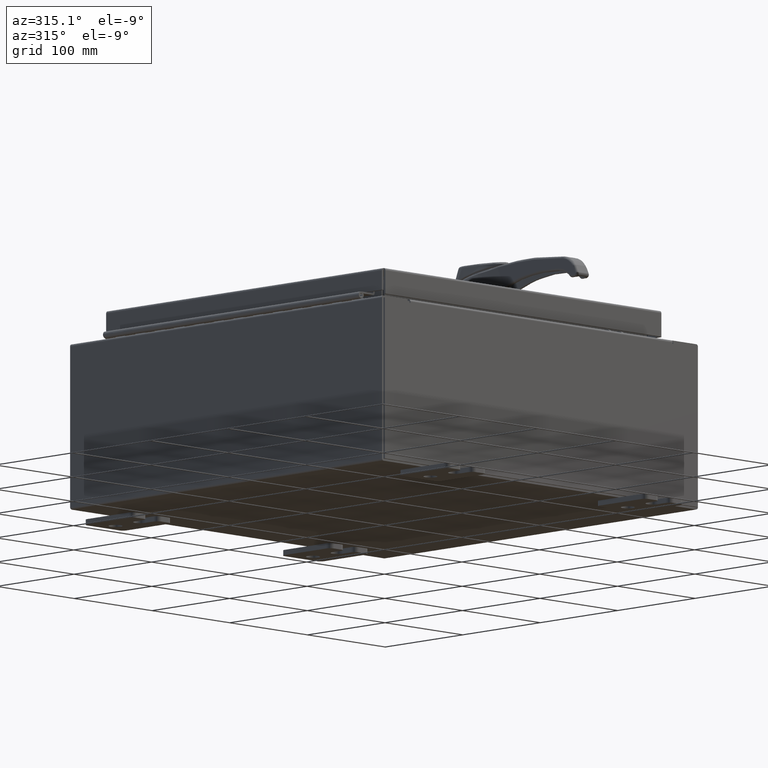
[diagram: clean part render]
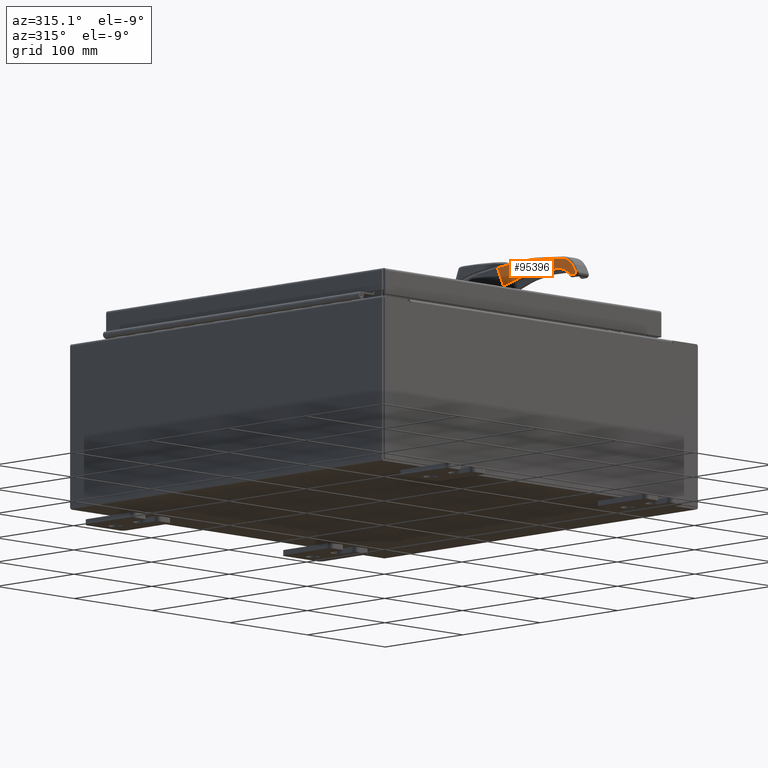
[diagram: same view with one face highlighted and labeled with its STEP entity id]
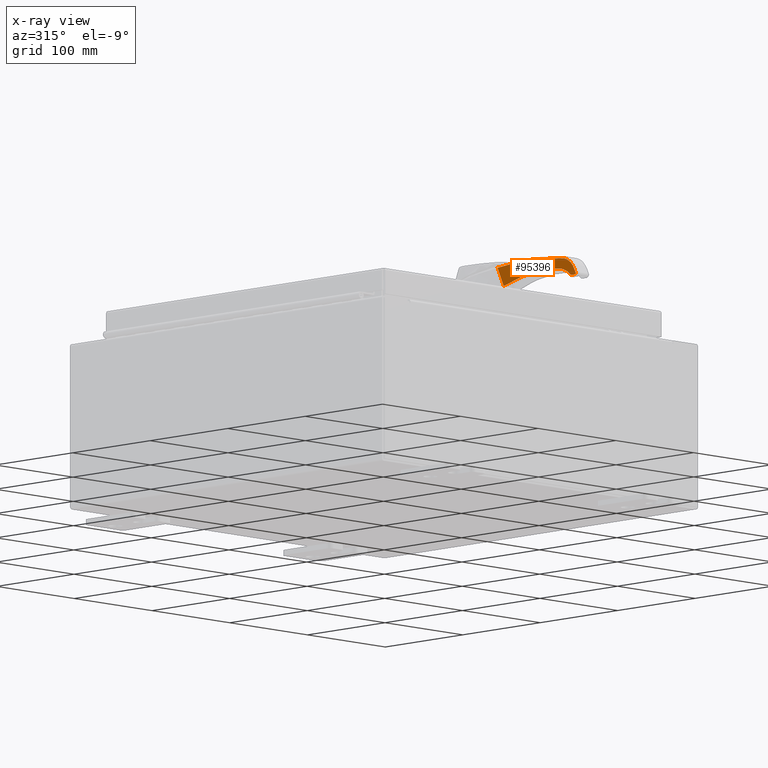
[diagram: x-ray of the same camera — body ghosted, the highlighted face saturated]
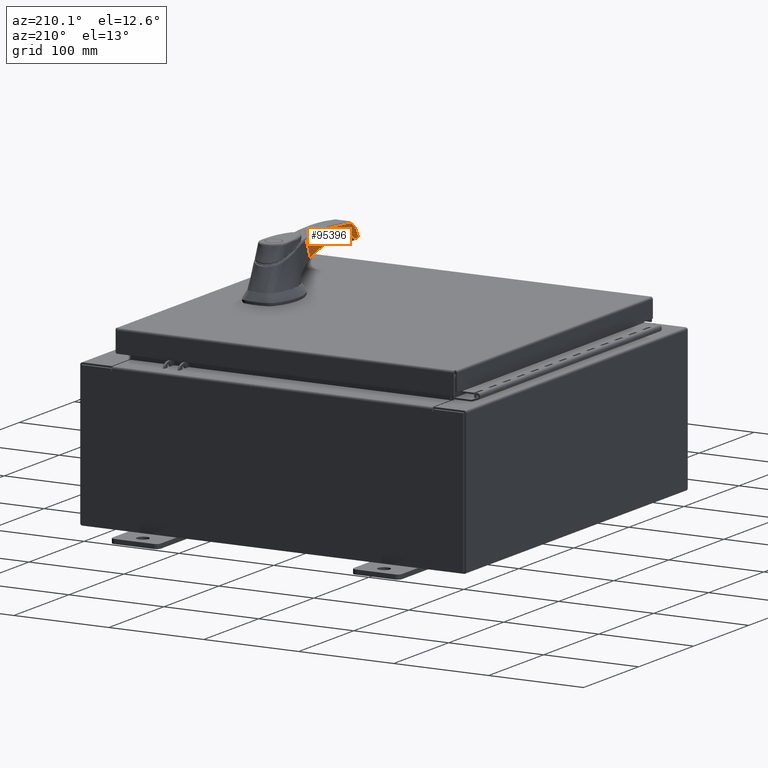
[diagram: same view with one face highlighted and labeled with its STEP entity id]
A machine part, auxiliary view. The second image highlights one B-rep face of the part: STEP entity #95396.
The next image is the same camera in x-ray: the body ghosted, the highlighted face saturated — about 0% of this face is hidden behind the body in this view.
A second angle (auxiliary view) of the same face is appended — the face is thin or edge-on in the first view.
In plain terms, the highlighted planar face has unit normal (-0.9997, -0.0262, 0).
Its self-contained STEP definition (entity closure, byte-faithful):
#308 = CARTESIAN_POINT ( 'NONE',  ( 5.027252122979119200, -0.3276492512891432400, 1.672613598478886100 ) ) ;
#590 = CARTESIAN_POINT ( 'NONE',  ( 4.226459910475989900, -0.3486187333589606000, 1.813212604159503600 ) ) ;
#676 = CARTESIAN_POINT ( 'NONE',  ( 5.412766542191642200, -0.3175542009438561700, 1.106221448057419100 ) ) ;
#954 = CARTESIAN_POINT ( 'NONE',  ( 1.830296283125000900, -0.4113644861716954600, 1.790684879674263200 ) ) ;
#1873 = EDGE_CURVE ( 'NONE', #84992, #93906, #76020, .T. ) ;
#3040 = CARTESIAN_POINT ( 'NONE',  ( 1.865198265657925300, -0.4104505455944753600, 1.054892245080341500 ) ) ;
#4730 = CARTESIAN_POINT ( 'NONE',  ( 2.136043681780679400, -0.4033582087705169200, 1.147100694644791900 ) ) ;
#4841 = VECTOR ( 'NONE', #72671, 39.37007874015748100 ) ;
#4992 = CARTESIAN_POINT ( 'NONE',  ( 1.643949245575242000, -0.4162441550816226000, 1.582017429974382800 ) ) ;
#5102 = CARTESIAN_POINT ( 'NONE',  ( 3.860877118394471500, -0.3581918556794490000, 1.427219183638859200 ) ) ;
#6200 = CARTESIAN_POINT ( 'NONE',  ( 4.796223764405048100, -0.3336989417670204700, 1.746371229950534700 ) ) ;
#6333 = VERTEX_POINT ( 'NONE', #3040 ) ;
#6376 = CARTESIAN_POINT ( 'NONE',  ( 0.01201875559651581700, -0.4589777588985590700, 1.102362204724396200 ) ) ;
#7168 = EDGE_LOOP ( 'NONE', ( #96371, #12815, #98367, #17591, #25008, #20308, #19226, #48738, #52543 ) ) ;
#7201 = CARTESIAN_POINT ( 'NONE',  ( 4.726758739140723100, -0.3355179474703931000, 1.378636206842420300 ) ) ;
#7568 = CARTESIAN_POINT ( 'NONE',  ( 5.131864835780120000, -0.3249098709965970700, 1.155835109199118600 ) ) ;
#7907 = CARTESIAN_POINT ( 'NONE',  ( 5.395139227144961000, -0.3180157884331437600, 1.248437359127173800 ) ) ;
#7985 = VERTEX_POINT ( 'NONE', #22847 ) ;
#8622 = CARTESIAN_POINT ( 'NONE',  ( 4.965051659934795600, -0.3292780277359886300, 1.700730400688387400 ) ) ;
#8911 = CARTESIAN_POINT ( 'NONE',  ( 4.058275180073613000, -0.3530228055184109800, 1.827172151638980300 ) ) ;
#8985 = CARTESIAN_POINT ( 'NONE',  ( 5.424500800839977500, -0.3172469285672184800, 1.113942589046286200 ) ) ;
#10750 = CARTESIAN_POINT ( 'NONE',  ( 4.575459058248952700, -0.3394798690476670300, 1.404708311847414800 ) ) ;
#12815 = ORIENTED_EDGE ( 'NONE', *, *, #1873, .T. ) ;
#12817 = VERTEX_POINT ( 'NONE', #56847 ) ;
#12958 = CARTESIAN_POINT ( 'NONE',  ( 1.579369982001993300, -0.4179352226125470600, 1.719194243321980900 ) ) ;
#13066 = CARTESIAN_POINT ( 'NONE',  ( 2.425409967045300400, -0.3957808859198125900, 1.227263598866169500 ) ) ;
#13317 = CARTESIAN_POINT ( 'NONE',  ( 1.677914844090294700, -0.4153547345828571000, 1.507963518407065700 ) ) ;
#13417 = CARTESIAN_POINT ( 'NONE',  ( 4.118667457582276400, -0.3514413780761848100, 1.432448994375067600 ) ) ;
#14881 = DIRECTION ( 'NONE',  ( 0.9996573249755573700, 0.02617694830786631100, 0.0000000000000000000 ) ) ;
#15522 = CARTESIAN_POINT ( 'NONE',  ( 4.736852304631136200, -0.3352536381561077600, 1.375956415012458600 ) ) ;
#16202 = CARTESIAN_POINT ( 'NONE',  ( 5.350275075045015400, -0.3191905976013007500, 1.336461834158056300 ) ) ;
#16578 = CARTESIAN_POINT ( 'NONE',  ( 5.262234407094996200, -0.3214960236271381400, 1.473345805858052000 ) ) ;
#16927 = CARTESIAN_POINT ( 'NONE',  ( 4.949866840647726600, -0.3296756562228820300, 1.706683484577455200 ) ) ;
#17203 = CARTESIAN_POINT ( 'NONE',  ( 3.720888702291673200, -0.3618575813641107800, 1.851515652433124700 ) ) ;
#17284 = CARTESIAN_POINT ( 'NONE',  ( 5.432636934853127800, -0.3170338764000736900, 1.127150124212980900 ) ) ;
#17591 = ORIENTED_EDGE ( 'NONE', *, *, #38612, .T. ) ;
#19226 = ORIENTED_EDGE ( 'NONE', *, *, #86111, .T. ) ;
#20093 = EDGE_CURVE ( 'NONE', #34599, #31396, #36980, .T. ) ;
#20197 = CARTESIAN_POINT ( 'NONE',  ( 1.562662322280721000, -0.4183727280796126800, 1.754100271247677400 ) ) ;
#20308 = ORIENTED_EDGE ( 'NONE', *, *, #20093, .F. ) ;
#21277 = CARTESIAN_POINT ( 'NONE',  ( 1.602075017722321700, -0.4173406703279493000, 1.671475281182585900 ) ) ;
#21387 = CARTESIAN_POINT ( 'NONE',  ( 2.494816690941148000, -0.3939634068915022800, 1.244643828527438200 ) ) ;
#21656 = CARTESIAN_POINT ( 'NONE',  ( 1.711304161550123700, -0.4144804045346055500, 1.432741268597854900 ) ) ;
#21763 = CARTESIAN_POINT ( 'NONE',  ( 4.575459058248952700, -0.3394798690476670300, 1.404708311847414800 ) ) ;
#22261 = B_SPLINE_CURVE_WITH_KNOTS ( 'NONE', 3,
 ( #89745, #106023, #48577, #106372, #56905, #7201, #65228, #15522, #73532, #23874, #81811, #32246, #90118, #40569, #98419, #48946, #106721, #57250, #7568, #65569 ),
 .UNSPECIFIED., .F., .F.,
 ( 4, 1, 1, 1, 2, 2, 2, 1, 1, 1, 2, 2, 4 ),
 ( 0.0000000000000000000, 0.1249999999999930100, 0.1874999999999894000, 0.2187499999999874500, 0.2343749999999866500, 0.2499999999999858200, 0.4999999999999952300, 0.6249999999999988900, 0.6875000000000023300, 0.7187500000000042200, 0.7343750000000051100, 0.7500000000000060000, 1.000000000000000000 ),
 .UNSPECIFIED. ) ;
#22847 = CARTESIAN_POINT ( 'NONE',  ( 5.432269163649482200, -0.3170435068279676700, 1.156470923341585700 ) ) ;
#23874 = CARTESIAN_POINT ( 'NONE',  ( 4.848377189913946100, -0.3323332562570805400, 1.339782375009737700 ) ) ;
#24952 = CARTESIAN_POINT ( 'NONE',  ( 5.218945708604727500, -0.3226295780906361400, 1.524008939040908600 ) ) ;
#25008 = ORIENTED_EDGE ( 'NONE', *, *, #87076, .T. ) ;
#25299 = CARTESIAN_POINT ( 'NONE',  ( 4.895934355496986100, -0.3310879280490703300, 1.726751879461949400 ) ) ;
#25585 = CARTESIAN_POINT ( 'NONE',  ( 3.044340279585847400, -0.3795736252988379200, 1.862495029003548200 ) ) ;
#25670 = CARTESIAN_POINT ( 'NONE',  ( 5.434704668621652200, -0.3169797308857851800, 1.135807073948646100 ) ) ;
#26181 = CARTESIAN_POINT ( 'NONE',  ( 5.198911570732901700, -0.3231541904536540100, 1.102362204724396200 ) ) ;
#29672 = CARTESIAN_POINT ( 'NONE',  ( 1.634592319846323000, -0.4164891748048886200, 1.602177403728586700 ) ) ;
#29778 = CARTESIAN_POINT ( 'NONE',  ( 2.746605878384671900, -0.3873700749771385500, 1.305412663320849400 ) ) ;
#30030 = CARTESIAN_POINT ( 'NONE',  ( 1.719031078691577500, -0.4142780680883678100, 1.415067387106177900 ) ) ;
#30228 = CARTESIAN_POINT ( 'NONE',  ( 5.198911570732901700, -0.3231541904536540100, 1.102362204724396200 ) ) ;
#31396 = VERTEX_POINT ( 'NONE', #71166 ) ;
#32246 = CARTESIAN_POINT ( 'NONE',  ( 4.962652920588130500, -0.3293408409363854400, 1.281904483586329800 ) ) ;
#33309 = CARTESIAN_POINT ( 'NONE',  ( 5.208016648390412200, -0.3229157656042330200, 1.535582108366977000 ) ) ;
#33680 = CARTESIAN_POINT ( 'NONE',  ( 4.796223764405048100, -0.3336989417670204700, 1.746371229950534700 ) ) ;
#33686 = CARTESIAN_POINT ( 'NONE',  ( 5.403284725669279500, -0.3178024910476440200, 1.102871452685623100 ) ) ;
#33951 = CARTESIAN_POINT ( 'NONE',  ( 2.604808650227163900, -0.3910831660723982400, 1.849795997052754200 ) ) ;
#34034 = CARTESIAN_POINT ( 'NONE',  ( 5.434952900611659900, -0.3169732307023638800, 1.137955061585721900 ) ) ;
#34539 = CARTESIAN_POINT ( 'NONE',  ( 5.183227423342853700, -0.3235648943070889600, 1.105621196238420800 ) ) ;
#34599 = VERTEX_POINT ( 'NONE', #30228 ) ;
#36980 = B_SPLINE_CURVE_WITH_KNOTS ( 'NONE', 3,
 ( #26181, #67503, #75800, #34539, #92404, #42885, #100736 ),
 .UNSPECIFIED., .F., .F.,
 ( 4, 3, 4 ),
 ( 0.0000000000000000000, 0.5000000000000001100, 1.000000000000000000 ),
 .UNSPECIFIED. ) ;
#37998 = CARTESIAN_POINT ( 'NONE',  ( 1.641755148450550400, -0.4163016095368447500, 1.586756100386060900 ) ) ;
#38101 = CARTESIAN_POINT ( 'NONE',  ( 3.315619737121575200, -0.3724699227004774100, 1.391408703630372600 ) ) ;
#38354 = CARTESIAN_POINT ( 'NONE',  ( 1.721313358472558600, -0.4142183044890242500, 1.409828426558975600 ) ) ;
#38612 = EDGE_CURVE ( 'NONE', #6333, #78961, #68546, .T. ) ;
#40569 = CARTESIAN_POINT ( 'NONE',  ( 5.025008320771610700, -0.3277080073177657800, 1.241009566716809700 ) ) ;
#41646 = CARTESIAN_POINT ( 'NONE',  ( 5.167038257574067700, -0.3239888225321811400, 1.577522815041105800 ) ) ;
#41998 = CARTESIAN_POINT ( 'NONE',  ( 5.410740487529742500, -0.3176072550523275100, 1.105306983267832200 ) ) ;
#42272 = CARTESIAN_POINT ( 'NONE',  ( 2.435896487390821100, -0.3955062867205113000, 1.840399209067762600 ) ) ;
#42353 = CARTESIAN_POINT ( 'NONE',  ( 5.435478110066088500, -0.3169594776087827400, 1.144906467033223600 ) ) ;
#42683 = EDGE_CURVE ( 'NONE', #63917, #7985, #97278, .T. ) ;
#42885 = CARTESIAN_POINT ( 'NONE',  ( 5.173810360600048100, -0.3238114887734843100, 1.110928919130462300 ) ) ;
#44942 = EDGE_CURVE ( 'NONE', #12817, #84992, #68776, .T. ) ;
#45818 = AXIS2_PLACEMENT_3D ( 'NONE', #105724, #64587, #14881 ) ;
#46371 = CARTESIAN_POINT ( 'NONE',  ( 1.643485449543684800, -0.4162563000081288500, 1.583019722426740200 ) ) ;
#46479 = CARTESIAN_POINT ( 'NONE',  ( 3.688300484388262700, -0.3627109338822086500, 1.421075829406431800 ) ) ;
#46735 = CARTESIAN_POINT ( 'NONE',  ( 1.820067232618682000, -0.4116323432859810800, 1.174716615665965400 ) ) ;
#48577 = CARTESIAN_POINT ( 'NONE',  ( 4.644924989263725700, -0.3376608396263841600, 1.396706217672467800 ) ) ;
#48738 = ORIENTED_EDGE ( 'NONE', *, *, #42683, .T. ) ;
#48946 = CARTESIAN_POINT ( 'NONE',  ( 5.039462476693138600, -0.3273295119244560800, 1.230622647016470700 ) ) ;
#49047 = LINE ( 'NONE', #6376, #4841 ) ;
#49717 = EDGE_CURVE ( 'NONE', #7985, #12817, #86622, .T. ) ;
#49992 = CARTESIAN_POINT ( 'NONE',  ( 5.061091700976718700, -0.3267631307537640100, 1.653180530169524400 ) ) ;
#50281 = CARTESIAN_POINT ( 'NONE',  ( 4.796223764405048100, -0.3336989417670204700, 1.746371229950534700 ) ) ;
#50369 = CARTESIAN_POINT ( 'NONE',  ( 5.412470275555306500, -0.3175619589587588300, 1.106081584536708500 ) ) ;
#50635 = CARTESIAN_POINT ( 'NONE',  ( 2.098858991442421400, -0.4043319241552888500, 1.817993473940958400 ) ) ;
#50716 = CARTESIAN_POINT ( 'NONE',  ( 5.432269163649482200, -0.3170435068279676700, 1.156470923341585700 ) ) ;
#51581 = EDGE_CURVE ( 'NONE', #93906, #6333, #54832, .T. ) ;
#52543 = ORIENTED_EDGE ( 'NONE', *, *, #49717, .T. ) ;
#54673 = CARTESIAN_POINT ( 'NONE',  ( 1.643893878337060500, -0.4162456049237791000, 1.582137094454558300 ) ) ;
#54777 = CARTESIAN_POINT ( 'NONE',  ( 3.832095397972286000, -0.3589455315530504800, 1.426446183039729000 ) ) ;
#54832 = B_SPLINE_CURVE_WITH_KNOTS ( 'NONE', 3,
 ( #70965, #12958, #21277, #79257, #29672, #87543, #37998, #95833, #46371, #104190, #54673, #4992, #62996, #13317, #71317, #21656, #79616, #30030, #87921, #38354, #96199, #46735, #104560 ),
 .UNSPECIFIED., .F., .F.,
 ( 4, 1, 1, 1, 1, 1, 1, 1, 2, 2, 1, 1, 1, 1, 2, 2, 4 ),
 ( 0.0000000000000000000, 0.1249999999999781300, 0.1874999999999679100, 0.2187499999999625600, 0.2343749999999601700, 0.2421874999999595900, 0.2460937499999595900, 0.2480468749999592800, 0.2490234374999591400, 0.2499999999999589800, 0.3749999999999637000, 0.4374999999999663000, 0.4687499999999675800, 0.4843749999999682500, 0.4921874999999689100, 0.4999999999999694700, 1.000000000000000000 ),
 .UNSPECIFIED. ) ;
#56847 = CARTESIAN_POINT ( 'NONE',  ( 5.297676707349642900, -0.3205679343324388000, 1.420544348434232400 ) ) ;
#56905 = CARTESIAN_POINT ( 'NONE',  ( 4.716594132266138200, -0.3357841170687924100, 1.381253626412967800 ) ) ;
#57250 = CARTESIAN_POINT ( 'NONE',  ( 5.090218071540584300, -0.3260004298985836900, 1.193013598777301400 ) ) ;
#58335 = CARTESIAN_POINT ( 'NONE',  ( 4.986069071573239400, -0.3287276674432371700, 1.691919187316828900 ) ) ;
#58599 = CARTESIAN_POINT ( 'NONE',  ( 4.125567585503073800, -0.3512606918676333700, 1.821762134555519500 ) ) ;
#58677 = CARTESIAN_POINT ( 'NONE',  ( 5.419404971012599300, -0.3173803675674077800, 1.109486800366131300 ) ) ;
#58946 = CARTESIAN_POINT ( 'NONE',  ( 1.562662322280721000, -0.4183727280796126800, 1.754100271247677400 ) ) ;
#62374 = CARTESIAN_POINT ( 'NONE',  ( 1.865198265657925300, -0.4104505455944753600, 1.054892245080341500 ) ) ;
#62732 = CARTESIAN_POINT ( 'NONE',  ( 2.328568600768278400, -0.3983167663417950300, 1.201833791088602800 ) ) ;
#62996 = CARTESIAN_POINT ( 'NONE',  ( 1.657829848378247200, -0.4158806787052900500, 1.552012839726104400 ) ) ;
#63101 = CARTESIAN_POINT ( 'NONE',  ( 3.875357489891535500, -0.3578126738071342700, 1.427558849567084300 ) ) ;
#63917 = VERTEX_POINT ( 'NONE', #66934 ) ;
#64587 = DIRECTION ( 'NONE',  ( 0.02617694830786631400, -0.9996573249755574800, 9.466330862652143100E-030 ) ) ;
#65228 = CARTESIAN_POINT ( 'NONE',  ( 4.733528111140374900, -0.3353406852261375800, 1.376852221744580000 ) ) ;
#65569 = CARTESIAN_POINT ( 'NONE',  ( 5.170139892717847000, -0.3239076033575698500, 1.114858622675518400 ) ) ;
#66639 = CARTESIAN_POINT ( 'NONE',  ( 4.955952936532143300, -0.3295162861933903000, 1.704326296194612400 ) ) ;
#66914 = CARTESIAN_POINT ( 'NONE',  ( 4.024692465120520700, -0.3539021998582526600, 1.829726665391429900 ) ) ;
#66934 = CARTESIAN_POINT ( 'NONE',  ( 5.395761964433690500, -0.3179994814833429500, 1.102362204724397300 ) ) ;
#66995 = CARTESIAN_POINT ( 'NONE',  ( 5.430347092255900100, -0.3170938380387304200, 1.122597456160225700 ) ) ;
#67503 = CARTESIAN_POINT ( 'NONE',  ( 5.193534312655935500, -0.3232949989119144900, 1.102362204724396200 ) ) ;
#68546 = B_SPLINE_CURVE_WITH_KNOTS ( 'NONE', 3,
 ( #62374, #87290, #4730, #62732, #13066, #71068, #21387, #79363, #29778, #87647, #38101, #95934, #46479, #104294, #54777, #5102, #63101, #13417, #71426, #21763 ),
 .UNSPECIFIED., .F., .F.,
 ( 4, 1, 1, 1, 2, 2, 2, 1, 1, 1, 2, 2, 4 ),
 ( 0.0000000000000000000, 0.1250000000000020000, 0.1875000000000028300, 0.2187500000000031400, 0.2343750000000031400, 0.2500000000000031100, 0.5000000000000014400, 0.6250000000000008900, 0.6875000000000008900, 0.7187500000000008900, 0.7343750000000010000, 0.7500000000000010000, 1.000000000000000000 ),
 .UNSPECIFIED. ) ;
#68776 = B_SPLINE_CURVE_WITH_KNOTS ( 'NONE', 3,
 ( #107080, #99135, #16578, #74579, #24952, #82865, #33309, #91186, #41646, #99503, #49992, #308, #58335, #8622, #66639, #16927, #74938, #25299, #83213, #33680 ),
 .UNSPECIFIED., .F., .F.,
 ( 4, 1, 1, 1, 2, 2, 2, 1, 1, 1, 2, 2, 4 ),
 ( 0.0000000000000000000, 0.1250000000000056900, 0.1875000000000090800, 0.2187500000000094900, 0.2343750000000096900, 0.2500000000000098800, 0.4999999999999985600, 0.6249999999999924500, 0.6874999999999897900, 0.7187499999999909000, 0.7343749999999889000, 0.7499999999999869000, 1.000000000000000000 ),
 .UNSPECIFIED. ) ;
#70965 = CARTESIAN_POINT ( 'NONE',  ( 1.562662322280721000, -0.4183727280796126800, 1.754100271247677400 ) ) ;
#71068 = CARTESIAN_POINT ( 'NONE',  ( 2.467037461189003800, -0.3946908316230442500, 1.237747072104197700 ) ) ;
#71166 = CARTESIAN_POINT ( 'NONE',  ( 5.170139892717847000, -0.3239076033575698500, 1.114858622675518400 ) ) ;
#71317 = CARTESIAN_POINT ( 'NONE',  ( 1.700341953352679100, -0.4147674600586888100, 1.457637822105770900 ) ) ;
#71426 = CARTESIAN_POINT ( 'NONE',  ( 4.347263863354538800, -0.3454553705236357900, 1.424736263276197500 ) ) ;
#72671 = DIRECTION ( 'NONE',  ( 0.9996573249755573700, 0.02617694830786631100, 0.0000000000000000000 ) ) ;
#73532 = CARTESIAN_POINT ( 'NONE',  ( 4.795241008405360700, -0.3337246761385501100, 1.359861895499666400 ) ) ;
#74221 = CARTESIAN_POINT ( 'NONE',  ( 5.297676707349642900, -0.3205679343324388000, 1.420544348434232400 ) ) ;
#74579 = CARTESIAN_POINT ( 'NONE',  ( 5.233846149436590000, -0.3222393963156668900, 1.507491646360743500 ) ) ;
#74938 = CARTESIAN_POINT ( 'NONE',  ( 4.946738822391996100, -0.3297575662635935900, 1.707869852563739500 ) ) ;
#75221 = CARTESIAN_POINT ( 'NONE',  ( 3.450451277902521600, -0.3689392345485360000, 1.861523569755090700 ) ) ;
#75294 = CARTESIAN_POINT ( 'NONE',  ( 5.434200137439442600, -0.3169929424997519100, 1.132855730642154100 ) ) ;
#75800 = CARTESIAN_POINT ( 'NONE',  ( 5.188159560683404300, -0.3234357417455208700, 1.103479018449290400 ) ) ;
#76020 = B_SPLINE_CURVE_WITH_KNOTS ( 'NONE', 3,
 ( #50281, #99419, #91467, #590, #58599, #8911, #66914, #17203, #75221, #25585, #83487, #33951, #91830, #42272, #100125, #50635, #954, #58946 ),
 .UNSPECIFIED., .F., .F.,
 ( 4, 1, 1, 2, 2, 2, 1, 1, 2, 2, 4 ),
 ( 0.0000000000000000000, 0.1249999999999993900, 0.1874999999999993100, 0.2187499999999990300, 0.2499999999999987800, 0.4999999999999985600, 0.6249999999999984500, 0.6874999999999984500, 0.7187499999999983300, 0.7499999999999983300, 1.000000000000000000 ),
 .UNSPECIFIED. ) ;
#78961 = VERTEX_POINT ( 'NONE', #10750 ) ;
#79257 = CARTESIAN_POINT ( 'NONE',  ( 1.624440505841804300, -0.4167550094101958300, 1.623923333709449200 ) ) ;
#79363 = CARTESIAN_POINT ( 'NONE',  ( 2.508639233227379300, -0.3936014508833083300, 1.248026595286679100 ) ) ;
#79616 = CARTESIAN_POINT ( 'NONE',  ( 1.716722429040406400, -0.4143385222070641300, 1.420359565504577800 ) ) ;
#81811 = CARTESIAN_POINT ( 'NONE',  ( 4.925239700839819400, -0.3303205405743651600, 1.302321498461067400 ) ) ;
#82865 = CARTESIAN_POINT ( 'NONE',  ( 5.212408452819071100, -0.3228007621579171400, 1.530968715710012000 ) ) ;
#83213 = CARTESIAN_POINT ( 'NONE',  ( 4.846758835518886400, -0.3323756343583405500, 1.739215436102680600 ) ) ;
#83487 = CARTESIAN_POINT ( 'NONE',  ( 2.841392512891607300, -0.3848879996001334200, 1.859469751103533000 ) ) ;
#83571 = CARTESIAN_POINT ( 'NONE',  ( 5.434861524104541700, -0.3169756234804125300, 1.137093051099694200 ) ) ;
#84992 = VERTEX_POINT ( 'NONE', #6200 ) ;
#86111 = EDGE_CURVE ( 'NONE', #34599, #63917, #49047, .T. ) ;
#86622 = B_SPLINE_CURVE_WITH_KNOTS ( 'NONE', 3,
 ( #107069, #7907, #16202, #74221 ),
 .UNSPECIFIED., .F., .F.,
 ( 4, 4 ),
 ( 0.0000000000000000000, 1.000000000000000000 ),
 .UNSPECIFIED. ) ;
#87076 = EDGE_CURVE ( 'NONE', #78961, #31396, #22261, .T. ) ;
#87290 = CARTESIAN_POINT ( 'NONE',  ( 1.973007145905221000, -0.4076274707118626700, 1.093546359026652100 ) ) ;
#87543 = CARTESIAN_POINT ( 'NONE',  ( 1.639410494334776300, -0.4163630064656275700, 1.591811949677081500 ) ) ;
#87647 = CARTESIAN_POINT ( 'NONE',  ( 2.972879599777250800, -0.3814448890555861000, 1.347169713889071900 ) ) ;
#87921 = CARTESIAN_POINT ( 'NONE',  ( 1.720567186239575100, -0.4142378436965942200, 1.411542438348228500 ) ) ;
#89745 = CARTESIAN_POINT ( 'NONE',  ( 4.575459058248952700, -0.3394798690476670300, 1.404708311847414800 ) ) ;
#90118 = CARTESIAN_POINT ( 'NONE',  ( 5.004520114460547100, -0.3282445098813204800, 1.255133123848433100 ) ) ;
#91186 = CARTESIAN_POINT ( 'NONE',  ( 5.205857901575070600, -0.3229722943790274700, 1.537820375733985200 ) ) ;
#91467 = CARTESIAN_POINT ( 'NONE',  ( 4.461551353213840400, -0.3424626472778415900, 1.790222166506364900 ) ) ;
#91548 = CARTESIAN_POINT ( 'NONE',  ( 5.408289585315550600, -0.3176714341854822200, 1.104347789335551600 ) ) ;
#91830 = CARTESIAN_POINT ( 'NONE',  ( 2.503455965902153600, -0.3937371795149589600, 1.844333474637971800 ) ) ;
#91908 = CARTESIAN_POINT ( 'NONE',  ( 5.434996134917221300, -0.3169720985722293500, 1.138443963375775500 ) ) ;
#92404 = CARTESIAN_POINT ( 'NONE',  ( 5.178295286002300400, -0.3236940468686573300, 1.107763374027551200 ) ) ;
#93906 = VERTEX_POINT ( 'NONE', #20197 ) ;
#95396 = ADVANCED_FACE ( 'NONE', ( #105328 ), #97410, .T. ) ;
#95833 = CARTESIAN_POINT ( 'NONE',  ( 1.642911367226325100, -0.4162713328826656600, 1.584259895174233500 ) ) ;
#95934 = CARTESIAN_POINT ( 'NONE',  ( 3.487341873489993500, -0.3679732203058421700, 1.408866467494125100 ) ) ;
#96199 = CARTESIAN_POINT ( 'NONE',  ( 1.772367412552174400, -0.4128814070331068300, 1.292426615589774600 ) ) ;
#96371 = ORIENTED_EDGE ( 'NONE', *, *, #44942, .T. ) ;
#97278 = B_SPLINE_CURVE_WITH_KNOTS ( 'NONE', 3,
 ( #99510, #106737, #33686, #91548, #41998, #99848, #50369, #676, #58677, #8985, #66995, #17284, #75294, #25670, #83571, #34034, #91908, #42353, #100203, #50716 ),
 .UNSPECIFIED., .F., .F.,
 ( 4, 1, 1, 1, 2, 2, 2, 1, 1, 1, 2, 2, 4 ),
 ( 0.0000000000000000000, 0.1249999999998540600, 0.1874999999998034100, 0.2187499999997790700, 0.2343749999997669100, 0.2499999999997547500, 0.4999999999998171500, 0.6249999999998482300, 0.6874999999998705500, 0.7187499999998857600, 0.7343749999998907500, 0.7499999999998958600, 1.000000000000000000 ),
 .UNSPECIFIED. ) ;
#97410 = PLANE ( 'NONE',  #45818 ) ;
#98367 = ORIENTED_EDGE ( 'NONE', *, *, #51581, .T. ) ;
#98419 = CARTESIAN_POINT ( 'NONE',  ( 5.033693539770959900, -0.3274805768542377000, 1.234798497104110600 ) ) ;
#99135 = CARTESIAN_POINT ( 'NONE',  ( 5.284145558221644600, -0.3209222599422453200, 1.442172933754553500 ) ) ;
#99419 = CARTESIAN_POINT ( 'NONE',  ( 4.662502906076657200, -0.3372005456753710600, 1.765302019839503100 ) ) ;
#99503 = CARTESIAN_POINT ( 'NONE',  ( 5.126823949838183100, -0.3250418712405119800, 1.610467165905490500 ) ) ;
#99510 = CARTESIAN_POINT ( 'NONE',  ( 5.395761964433690500, -0.3179994814833429500, 1.102362204724397300 ) ) ;
#99848 = CARTESIAN_POINT ( 'NONE',  ( 5.411779832562478600, -0.3175800388448171700, 1.105765429011806200 ) ) ;
#100125 = CARTESIAN_POINT ( 'NONE',  ( 2.402036910936885800, -0.3963929309338997700, 1.838280141759030400 ) ) ;
#100203 = CARTESIAN_POINT ( 'NONE',  ( 5.434559669150393900, -0.3169835278305671000, 1.150788737930504600 ) ) ;
#100736 = CARTESIAN_POINT ( 'NONE',  ( 5.170139892717847000, -0.3239076033575698500, 1.114858622675518400 ) ) ;
#104190 = CARTESIAN_POINT ( 'NONE',  ( 1.643730621878868100, -0.4162498799445890100, 1.582489919076047700 ) ) ;
#104294 = CARTESIAN_POINT ( 'NONE',  ( 3.788933819454509700, -0.3600757572629188500, 1.425141003047066600 ) ) ;
#104560 = CARTESIAN_POINT ( 'NONE',  ( 1.865198265657925300, -0.4104505455944753600, 1.054892245080341500 ) ) ;
#105328 = FACE_OUTER_BOUND ( 'NONE', #7168, .T. ) ;
#105724 = CARTESIAN_POINT ( 'NONE',  ( 0.01201875559651572300, -0.4589777588985590700, -1.311287036958846300E-014 ) ) ;
#106023 = CARTESIAN_POINT ( 'NONE',  ( 4.603380456256254600, -0.3387487215093457100, 1.402257017552936500 ) ) ;
#106372 = CARTESIAN_POINT ( 'NONE',  ( 4.692802874099682800, -0.3364071130891713700, 1.386951032210771000 ) ) ;
#106721 = CARTESIAN_POINT ( 'NONE',  ( 5.042385945527901600, -0.3272529581988388700, 1.228480372199615800 ) ) ;
#106737 = CARTESIAN_POINT ( 'NONE',  ( 5.398818179884674600, -0.3179194516652451600, 1.102363823353626600 ) ) ;
#107069 = CARTESIAN_POINT ( 'NONE',  ( 5.432269163649482200, -0.3170435068279676700, 1.156470923341585700 ) ) ;
#107080 = CARTESIAN_POINT ( 'NONE',  ( 5.297676707349642900, -0.3205679343324388000, 1.420544348434232400 ) ) ;